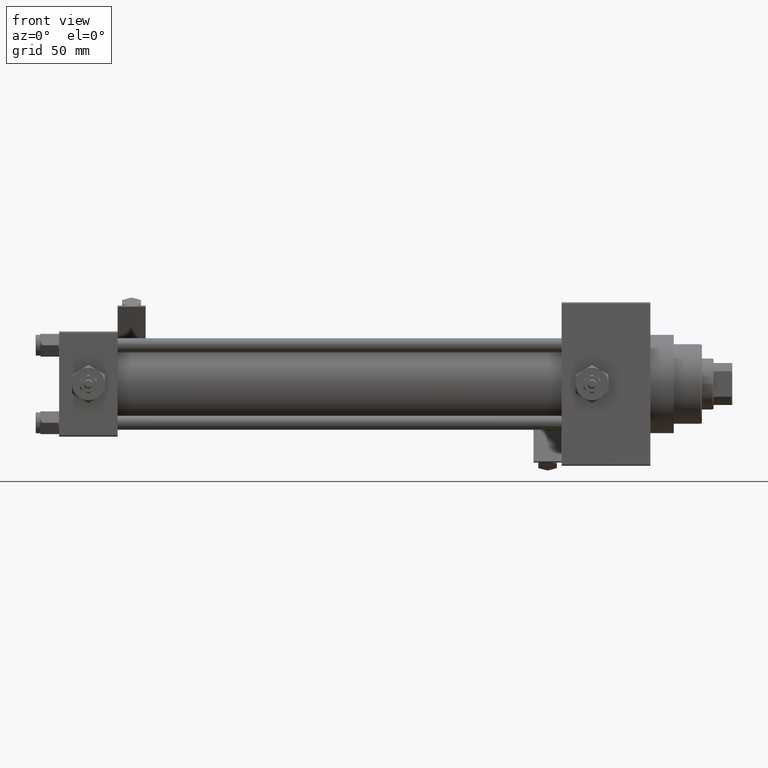
[diagram: clean part render]
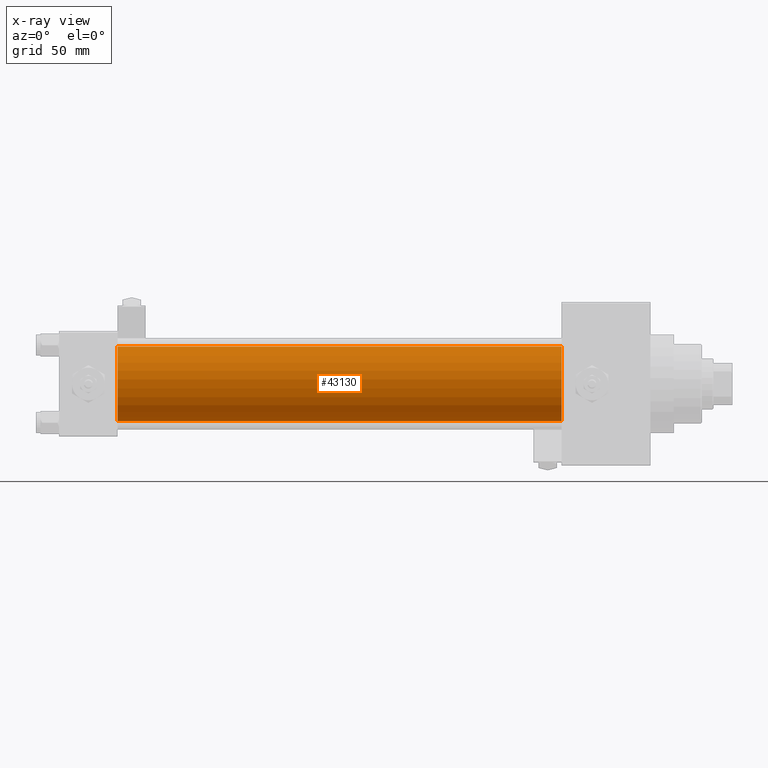
[diagram: x-ray — body ghosted, one internal face saturated and labeled with its STEP entity id]
A machine part, front view, then the same camera in x-ray: the body is ghosted and one INTERNAL B-rep face — a face not visible from any outside direction — is saturated and labeled: STEP entity #43130.
In plain terms, the highlighted cylindrical surface (partial cylindrical patch) has radius 16 mm, axis along (-1, -0, -0).
Its self-contained STEP definition (entity closure, byte-faithful):
#3971 = ORIENTED_EDGE ( 'NONE', *, *, #16726, .T. ) ;
#4221 = CIRCLE ( 'NONE', #46310, 16.00000000000000000 ) ;
#4722 = CARTESIAN_POINT ( 'NONE',  ( 215.0000000000000000, -2.602085213965210642E-15, 16.00000000000000000 ) ) ;
#6039 = LINE ( 'NONE', #44568, #48332 ) ;
#7431 = DIRECTION ( 'NONE',  ( 0.000000000000000000, 0.000000000000000000, -1.000000000000000000 ) ) ;
#7621 = VECTOR ( 'NONE', #30832, 1000.000000000000000 ) ;
#8050 = CARTESIAN_POINT ( 'NONE',  ( 25.00000000000000000, -6.426503353294456087E-16, -16.00000000000000000 ) ) ;
#9378 = DIRECTION ( 'NONE',  ( 1.000000000000000000, 0.000000000000000000, 0.000000000000000000 ) ) ;
#9853 = DIRECTION ( 'NONE',  ( -1.000000000000000000, -0.000000000000000000, -0.000000000000000000 ) ) ;
#10626 = ORIENTED_EDGE ( 'NONE', *, *, #27204, .T. ) ;
#12933 = CARTESIAN_POINT ( 'NONE',  ( 215.0000000000000000, -2.602085213965210642E-15, 0.000000000000000000 ) ) ;
#13988 = DIRECTION ( 'NONE',  ( 0.000000000000000000, 0.000000000000000000, 1.000000000000000000 ) ) ;
#14393 = CARTESIAN_POINT ( 'NONE',  ( 25.00000000000000000, -2.602085213965210642E-15, 16.00000000000000000 ) ) ;
#15029 = CARTESIAN_POINT ( 'NONE',  ( 25.00000000000000000, -2.602085213965210642E-15, 0.000000000000000000 ) ) ;
#16726 = EDGE_CURVE ( 'NONE', #25109, #48430, #6039, .T. ) ;
#17774 = FACE_OUTER_BOUND ( 'NONE', #35634, .T. ) ;
#20661 = EDGE_CURVE ( 'NONE', #44656, #48430, #48478, .T. ) ;
#21154 = AXIS2_PLACEMENT_3D ( 'NONE', #25617, #21557, #13988 ) ;
#21557 = DIRECTION ( 'NONE',  ( -1.000000000000000000, -0.000000000000000000, -0.000000000000000000 ) ) ;
#22887 = ORIENTED_EDGE ( 'NONE', *, *, #48325, .F. ) ;
#25109 = VERTEX_POINT ( 'NONE', #47170 ) ;
#25617 = CARTESIAN_POINT ( 'NONE',  ( 215.0000000000000000, -2.602085213965210642E-15, 0.000000000000000000 ) ) ;
#27204 = EDGE_CURVE ( 'NONE', #44165, #25109, #4221, .T. ) ;
#27702 = CARTESIAN_POINT ( 'NONE',  ( 215.0000000000000000, -2.602085213965210642E-15, 16.00000000000000000 ) ) ;
#30832 = DIRECTION ( 'NONE',  ( -1.000000000000000000, -0.000000000000000000, -0.000000000000000000 ) ) ;
#31612 = ORIENTED_EDGE ( 'NONE', *, *, #20661, .F. ) ;
#35634 = EDGE_LOOP ( 'NONE', ( #10626, #3971, #31612, #22887 ) ) ;
#38334 = DIRECTION ( 'NONE',  ( 1.000000000000000000, 0.000000000000000000, 0.000000000000000000 ) ) ;
#38451 = LINE ( 'NONE', #4722, #7621 ) ;
#39569 = AXIS2_PLACEMENT_3D ( 'NONE', #15029, #38334, #7431 ) ;
#43130 = ADVANCED_FACE ( 'NONE', ( #17774 ), #45151, .F. ) ;
#43849 = DIRECTION ( 'NONE',  ( 0.000000000000000000, 0.000000000000000000, -1.000000000000000000 ) ) ;
#44165 = VERTEX_POINT ( 'NONE', #27702 ) ;
#44568 = CARTESIAN_POINT ( 'NONE',  ( 215.0000000000000000, -6.426503353294456087E-16, -16.00000000000000000 ) ) ;
#44656 = VERTEX_POINT ( 'NONE', #14393 ) ;
#45151 = CYLINDRICAL_SURFACE ( 'NONE', #21154, 16.00000000000000000 ) ;
#46310 = AXIS2_PLACEMENT_3D ( 'NONE', #12933, #9378, #43849 ) ;
#47170 = CARTESIAN_POINT ( 'NONE',  ( 215.0000000000000000, -6.426503353294456087E-16, -16.00000000000000000 ) ) ;
#48325 = EDGE_CURVE ( 'NONE', #44165, #44656, #38451, .T. ) ;
#48332 = VECTOR ( 'NONE', #9853, 1000.000000000000000 ) ;
#48430 = VERTEX_POINT ( 'NONE', #8050 ) ;
#48478 = CIRCLE ( 'NONE', #39569, 16.00000000000000000 ) ;